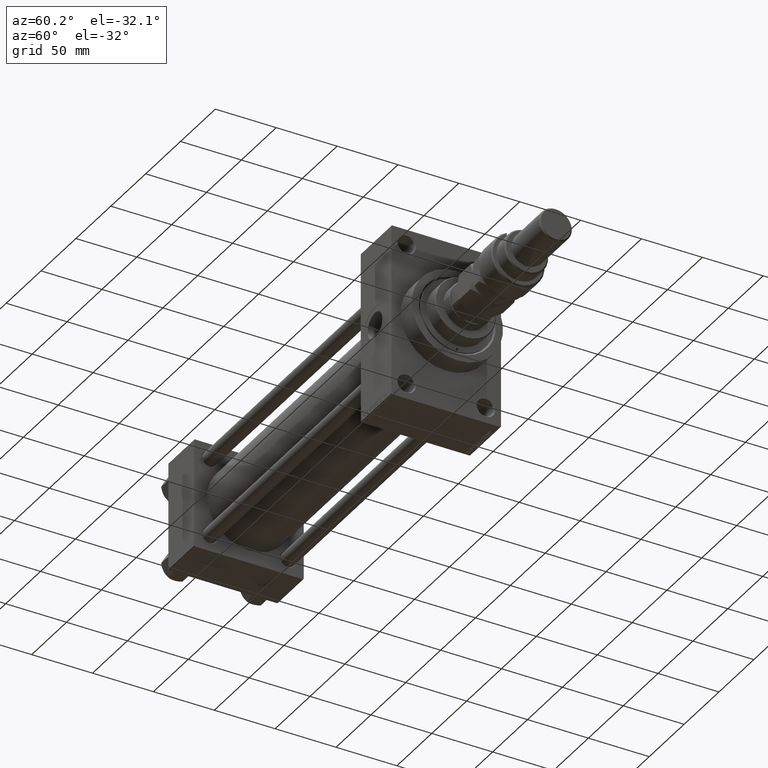
[diagram: clean part render]
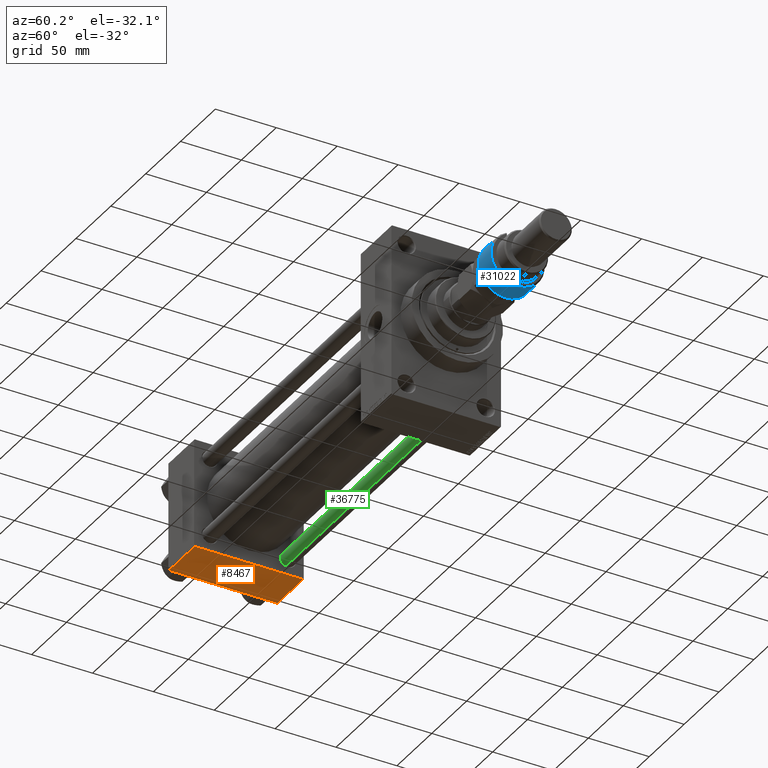
[diagram: same view with three faces highlighted in distinct colors, each labeled with its STEP entity id]
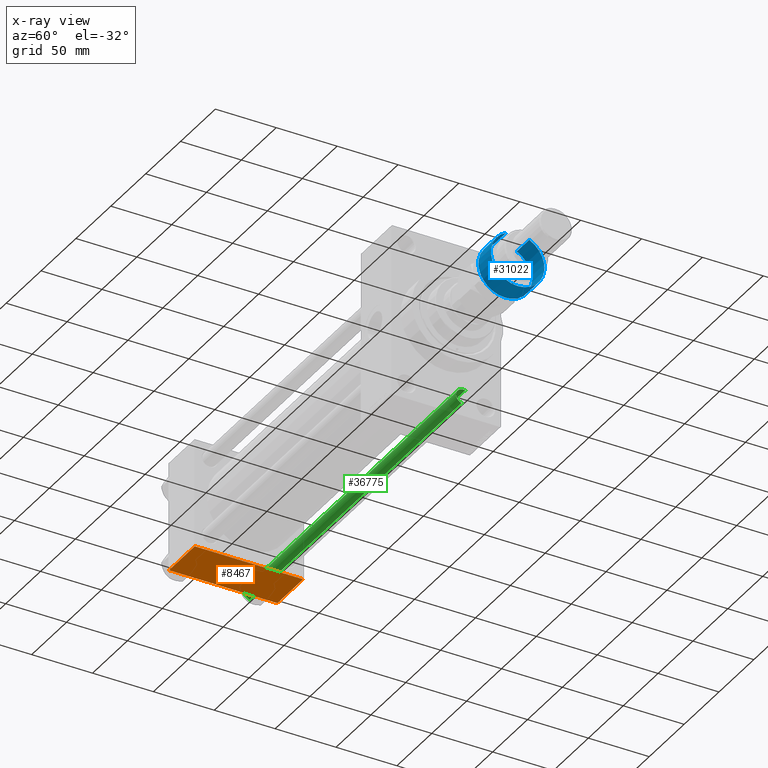
[diagram: x-ray of the same camera — body ghosted, the three highlighted faces saturated]
A machine part, auxiliary view with three faces highlighted in distinct colors.
The next image is the same camera in x-ray (body ghosted, the three faces saturated) — at least one of them is partly hidden behind the body in this view.
Their STEP definitions:

[orange] entity #8467 — the highlighted planar face has unit normal (0, 0, -1).
#1640 = CARTESIAN_POINT ( 'NONE',  ( 37.00000000000000000, 44.99999999999998579, -44.99999999999998579 ) ) ;
#2108 = VERTEX_POINT ( 'NONE', #23236 ) ;
#2681 = EDGE_CURVE ( 'NONE', #5134, #33511, #22088, .T. ) ;
#3330 = CARTESIAN_POINT ( 'NONE',  ( 0.000000000000000000, 44.99999999999998579, -44.99999999999998579 ) ) ;
#3435 = CARTESIAN_POINT ( 'NONE',  ( 0.000000000000000000, -44.49999999999998579, -45.00000000000000000 ) ) ;
#4323 = DIRECTION ( 'NONE',  ( 0.000000000000000000, -1.000000000000000000, -1.541976423090495633E-16 ) ) ;
#4398 = CARTESIAN_POINT ( 'NONE',  ( 37.00000000000000000, -44.49999999999995737, -45.00000000000000000 ) ) ;
#5134 = VERTEX_POINT ( 'NONE', #22256 ) ;
#8467 = ADVANCED_FACE ( 'NONE', ( #20977 ), #36502, .T. ) ;
#9069 = LINE ( 'NONE', #48010, #41297 ) ;
#11386 = CARTESIAN_POINT ( 'NONE',  ( 37.00000000000000000, 44.99999999999998579, -44.99999999999998579 ) ) ;
#11551 = DIRECTION ( 'NONE',  ( -1.000000000000000000, 0.000000000000000000, 0.000000000000000000 ) ) ;
#14607 = ORIENTED_EDGE ( 'NONE', *, *, #2681, .T. ) ;
#16323 = EDGE_CURVE ( 'NONE', #2108, #33638, #35144, .T. ) ;
#16812 = EDGE_CURVE ( 'NONE', #2108, #5134, #9069, .T. ) ;
#17148 = DIRECTION ( 'NONE',  ( 0.000000000000000000, 1.541976423090495880E-16, -1.000000000000000000 ) ) ;
#18620 = VECTOR ( 'NONE', #25893, 1000.000000000000000 ) ;
#20977 = FACE_OUTER_BOUND ( 'NONE', #49970, .T. ) ;
#21607 = AXIS2_PLACEMENT_3D ( 'NONE', #1640, #17148, #44378 ) ;
#22088 = LINE ( 'NONE', #11386, #18620 ) ;
#22256 = CARTESIAN_POINT ( 'NONE',  ( 37.00000000000000000, 44.49999999999998579, -44.99999999999998579 ) ) ;
#23236 = CARTESIAN_POINT ( 'NONE',  ( 0.000000000000000000, 44.49999999999998579, -44.99999999999998579 ) ) ;
#25224 = VECTOR ( 'NONE', #11551, 1000.000000000000000 ) ;
#25822 = EDGE_CURVE ( 'NONE', #33511, #33638, #38560, .T. ) ;
#25893 = DIRECTION ( 'NONE',  ( 0.000000000000000000, -1.000000000000000000, -1.541976423090495633E-16 ) ) ;
#26032 = ORIENTED_EDGE ( 'NONE', *, *, #16812, .T. ) ;
#27922 = DIRECTION ( 'NONE',  ( 1.000000000000000000, 0.000000000000000000, 0.000000000000000000 ) ) ;
#31455 = ORIENTED_EDGE ( 'NONE', *, *, #25822, .T. ) ;
#33511 = VERTEX_POINT ( 'NONE', #4398 ) ;
#33638 = VERTEX_POINT ( 'NONE', #38472 ) ;
#34008 = VECTOR ( 'NONE', #4323, 1000.000000000000000 ) ;
#35144 = LINE ( 'NONE', #3330, #34008 ) ;
#35460 = ORIENTED_EDGE ( 'NONE', *, *, #16323, .F. ) ;
#36502 = PLANE ( 'NONE',  #21607 ) ;
#38472 = CARTESIAN_POINT ( 'NONE',  ( 0.000000000000000000, -44.49999999999995737, -45.00000000000000000 ) ) ;
#38560 = LINE ( 'NONE', #3435, #25224 ) ;
#41297 = VECTOR ( 'NONE', #27922, 1000.000000000000000 ) ;
#44378 = DIRECTION ( 'NONE',  ( 0.000000000000000000, 1.000000000000000000, 1.541976423090495880E-16 ) ) ;
#48010 = CARTESIAN_POINT ( 'NONE',  ( 37.00000000000000000, 44.49999999999998579, -44.99999999999998579 ) ) ;
#49970 = EDGE_LOOP ( 'NONE', ( #35460, #26032, #14607, #31455 ) ) ;

[blue] entity #31022 — the highlighted cylindrical surface (edge-blend (fillet) strip) has radius 22 mm, axis along (-1, -0, 0).
#55 = CARTESIAN_POINT ( 'NONE',  ( 22.00000000000000000, 0.000000000000000000, 1.000000000000000888 ) ) ;
#1530 = AXIS2_PLACEMENT_3D ( 'NONE', #15089, #29659, #32749 ) ;
#1535 = CARTESIAN_POINT ( 'NONE',  ( -19.84313483298442193, -9.500000000000005329, 23.00000000000000000 ) ) ;
#2137 = CARTESIAN_POINT ( 'NONE',  ( 0.000000000000000000, 0.000000000000000000, 1.000000000000000888 ) ) ;
#3379 = DIRECTION ( 'NONE',  ( -1.000000000000000000, 0.000000000000000000, 0.000000000000000000 ) ) ;
#4754 = EDGE_CURVE ( 'NONE', #36148, #23795, #28501, .T. ) ;
#5079 = CARTESIAN_POINT ( 'NONE',  ( 0.000000000000000000, 0.000000000000000000, 1.000000000000000888 ) ) ;
#9145 = DIRECTION ( 'NONE',  ( -0.000000000000000000, -0.000000000000000000, -1.000000000000000000 ) ) ;
#12421 = ORIENTED_EDGE ( 'NONE', *, *, #46511, .T. ) ;
#12454 = DIRECTION ( 'NONE',  ( -0.000000000000000000, -0.000000000000000000, 1.000000000000000000 ) ) ;
#13300 = CARTESIAN_POINT ( 'NONE',  ( -19.84313483298442904, 9.500000000000000000, 23.00000000000000000 ) ) ;
#13327 = DIRECTION ( 'NONE',  ( -0.000000000000000000, -0.000000000000000000, 1.000000000000000000 ) ) ;
#13658 = AXIS2_PLACEMENT_3D ( 'NONE', #30342, #27038, #3379 ) ;
#13792 = LINE ( 'NONE', #13300, #24552 ) ;
#14826 = AXIS2_PLACEMENT_3D ( 'NONE', #5079, #12454, #32575 ) ;
#15089 = CARTESIAN_POINT ( 'NONE',  ( 0.000000000000000000, 0.000000000000000000, 18.99999999999998579 ) ) ;
#16978 = EDGE_CURVE ( 'NONE', #26440, #36148, #44554, .T. ) ;
#17615 = DIRECTION ( 'NONE',  ( -0.000000000000000000, -0.000000000000000000, -1.000000000000000000 ) ) ;
#18898 = CYLINDRICAL_SURFACE ( 'NONE', #13658, 22.00000000000000000 ) ;
#21375 = ORIENTED_EDGE ( 'NONE', *, *, #16978, .T. ) ;
#22652 = CARTESIAN_POINT ( 'NONE',  ( -19.84313483298442904, 9.500000000000000000, 18.99999999999998579 ) ) ;
#23795 = VERTEX_POINT ( 'NONE', #41492 ) ;
#24552 = VECTOR ( 'NONE', #17615, 1000.000000000000000 ) ;
#26440 = VERTEX_POINT ( 'NONE', #22652 ) ;
#27038 = DIRECTION ( 'NONE',  ( -0.000000000000000000, -0.000000000000000000, -1.000000000000000000 ) ) ;
#27598 = VERTEX_POINT ( 'NONE', #36015 ) ;
#27888 = AXIS2_PLACEMENT_3D ( 'NONE', #2137, #13327, #29864 ) ;
#28501 = LINE ( 'NONE', #1535, #46691 ) ;
#29659 = DIRECTION ( 'NONE',  ( 0.000000000000000000, 0.000000000000000000, -1.000000000000000000 ) ) ;
#29864 = DIRECTION ( 'NONE',  ( 1.000000000000000000, 0.000000000000000000, 0.000000000000000000 ) ) ;
#30314 = CIRCLE ( 'NONE', #27888, 22.00000000000000000 ) ;
#30342 = CARTESIAN_POINT ( 'NONE',  ( 0.000000000000000000, 0.000000000000000000, 20.00000000000000000 ) ) ;
#30635 = ORIENTED_EDGE ( 'NONE', *, *, #43642, .T. ) ;
#31022 = ADVANCED_FACE ( 'NONE', ( #38248 ), #18898, .T. ) ;
#32575 = DIRECTION ( 'NONE',  ( 1.000000000000000000, 0.000000000000000000, 0.000000000000000000 ) ) ;
#32749 = DIRECTION ( 'NONE',  ( 1.000000000000000000, 0.000000000000000000, 0.000000000000000000 ) ) ;
#33736 = VERTEX_POINT ( 'NONE', #55 ) ;
#34702 = EDGE_LOOP ( 'NONE', ( #39755, #21375, #43315, #12421, #30635 ) ) ;
#36015 = CARTESIAN_POINT ( 'NONE',  ( -19.84313483298442904, 9.500000000000000000, 1.000000000000000888 ) ) ;
#36148 = VERTEX_POINT ( 'NONE', #43369 ) ;
#36781 = CIRCLE ( 'NONE', #14826, 22.00000000000000000 ) ;
#38248 = FACE_OUTER_BOUND ( 'NONE', #34702, .T. ) ;
#39755 = ORIENTED_EDGE ( 'NONE', *, *, #41995, .F. ) ;
#41492 = CARTESIAN_POINT ( 'NONE',  ( -19.84313483298442193, -9.500000000000005329, 1.000000000000000888 ) ) ;
#41995 = EDGE_CURVE ( 'NONE', #26440, #27598, #13792, .T. ) ;
#43315 = ORIENTED_EDGE ( 'NONE', *, *, #4754, .T. ) ;
#43369 = CARTESIAN_POINT ( 'NONE',  ( -19.84313483298442193, -9.500000000000005329, 18.99999999999998579 ) ) ;
#43642 = EDGE_CURVE ( 'NONE', #33736, #27598, #30314, .T. ) ;
#44554 = CIRCLE ( 'NONE', #1530, 22.00000000000000000 ) ;
#46511 = EDGE_CURVE ( 'NONE', #23795, #33736, #36781, .T. ) ;
#46691 = VECTOR ( 'NONE', #9145, 1000.000000000000000 ) ;

[green] entity #36775 — the highlighted cylindrical surface (edge-blend (fillet) strip) has radius 6 mm, axis along (1, -0, 0).
#952 = DIRECTION ( 'NONE',  ( -1.000000000000000000, 0.000000000000000000, 0.000000000000000000 ) ) ;
#1571 = CARTESIAN_POINT ( 'NONE',  ( 0.000000000000000000, 0.000000000000000000, 0.5000000000000004441 ) ) ;
#1880 = LINE ( 'NONE', #4943, #38786 ) ;
#1928 = CYLINDRICAL_SURFACE ( 'NONE', #22736, 6.000000000000000888 ) ;
#2397 = ORIENTED_EDGE ( 'NONE', *, *, #39085, .T. ) ;
#4943 = CARTESIAN_POINT ( 'NONE',  ( -6.000000000000000888, 0.000000000000000000, 305.0000000000000000 ) ) ;
#6954 = CARTESIAN_POINT ( 'NONE',  ( 6.000000000000000888, 7.347880794884120722E-16, 304.5000000000000000 ) ) ;
#7367 = CIRCLE ( 'NONE', #13838, 6.000000000000000888 ) ;
#7744 = EDGE_CURVE ( 'NONE', #44073, #9454, #24017, .T. ) ;
#8482 = VERTEX_POINT ( 'NONE', #6954 ) ;
#9055 = DIRECTION ( 'NONE',  ( -0.000000000000000000, -0.000000000000000000, -1.000000000000000000 ) ) ;
#9454 = VERTEX_POINT ( 'NONE', #45619 ) ;
#10825 = EDGE_CURVE ( 'NONE', #8482, #9454, #17873, .T. ) ;
#11102 = DIRECTION ( 'NONE',  ( 0.000000000000000000, 0.000000000000000000, -1.000000000000000000 ) ) ;
#11616 = CARTESIAN_POINT ( 'NONE',  ( 0.000000000000000000, 0.000000000000000000, 304.5000000000000000 ) ) ;
#12807 = CARTESIAN_POINT ( 'NONE',  ( -6.000000000000000888, 0.000000000000000000, 304.5000000000000000 ) ) ;
#13057 = EDGE_CURVE ( 'NONE', #23253, #44073, #1880, .T. ) ;
#13122 = CARTESIAN_POINT ( 'NONE',  ( 0.000000000000000000, 0.000000000000000000, 305.0000000000000000 ) ) ;
#13251 = DIRECTION ( 'NONE',  ( 1.000000000000000000, 0.000000000000000000, 0.000000000000000000 ) ) ;
#13838 = AXIS2_PLACEMENT_3D ( 'NONE', #11616, #11102, #26905 ) ;
#14521 = CARTESIAN_POINT ( 'NONE',  ( -6.000000000000000888, 0.000000000000000000, 0.5000000000000004441 ) ) ;
#17873 = LINE ( 'NONE', #29585, #39573 ) ;
#20557 = ORIENTED_EDGE ( 'NONE', *, *, #10825, .F. ) ;
#20782 = AXIS2_PLACEMENT_3D ( 'NONE', #1571, #44551, #13251 ) ;
#22736 = AXIS2_PLACEMENT_3D ( 'NONE', #13122, #9055, #952 ) ;
#23253 = VERTEX_POINT ( 'NONE', #12807 ) ;
#24017 = CIRCLE ( 'NONE', #20782, 6.000000000000000888 ) ;
#24840 = FACE_OUTER_BOUND ( 'NONE', #39407, .T. ) ;
#26905 = DIRECTION ( 'NONE',  ( 1.000000000000000000, 0.000000000000000000, 0.000000000000000000 ) ) ;
#27628 = ORIENTED_EDGE ( 'NONE', *, *, #7744, .T. ) ;
#29082 = DIRECTION ( 'NONE',  ( -0.000000000000000000, -0.000000000000000000, -1.000000000000000000 ) ) ;
#29585 = CARTESIAN_POINT ( 'NONE',  ( 6.000000000000000888, 7.347880794884120722E-16, 305.0000000000000000 ) ) ;
#36775 = ADVANCED_FACE ( 'NONE', ( #24840 ), #1928, .T. ) ;
#38786 = VECTOR ( 'NONE', #44130, 1000.000000000000000 ) ;
#39085 = EDGE_CURVE ( 'NONE', #8482, #23253, #7367, .T. ) ;
#39407 = EDGE_LOOP ( 'NONE', ( #20557, #2397, #45005, #27628 ) ) ;
#39573 = VECTOR ( 'NONE', #29082, 1000.000000000000000 ) ;
#44073 = VERTEX_POINT ( 'NONE', #14521 ) ;
#44130 = DIRECTION ( 'NONE',  ( -0.000000000000000000, -0.000000000000000000, -1.000000000000000000 ) ) ;
#44551 = DIRECTION ( 'NONE',  ( -0.000000000000000000, -0.000000000000000000, 1.000000000000000000 ) ) ;
#45005 = ORIENTED_EDGE ( 'NONE', *, *, #13057, .T. ) ;
#45619 = CARTESIAN_POINT ( 'NONE',  ( 6.000000000000000888, 7.347880794884120722E-16, 0.5000000000000004441 ) ) ;